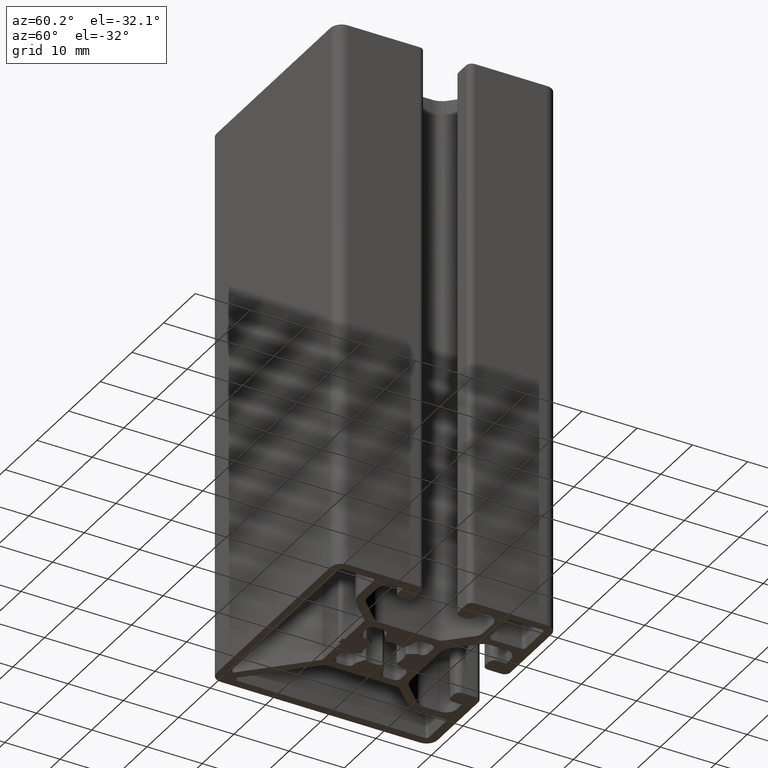
[diagram: clean part render]
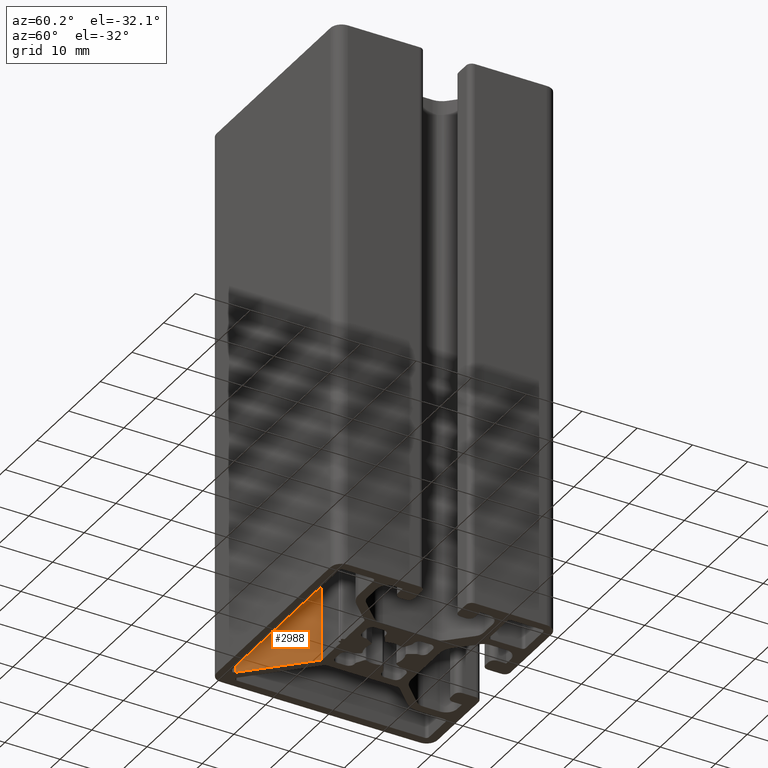
[diagram: same view with one face highlighted and labeled with its STEP entity id]
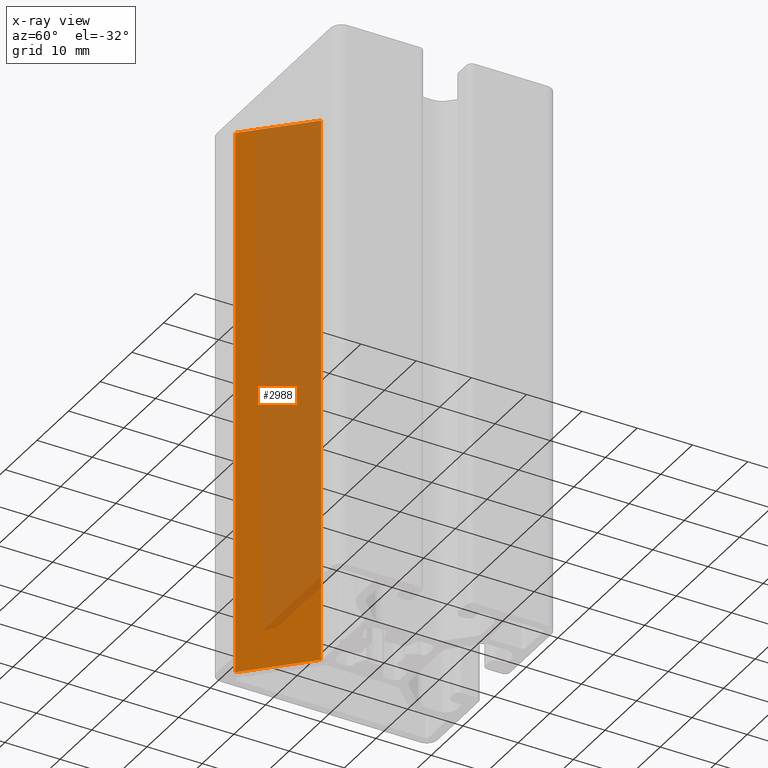
[diagram: x-ray of the same camera — body ghosted, the highlighted face saturated]
A machine part, auxiliary view. The second image highlights one B-rep face of the part: STEP entity #2988.
The next image is the same camera in x-ray: the body ghosted, the highlighted face saturated — about 66% of this face is hidden behind the body in this view.
In plain terms, the highlighted planar face has unit normal (-0.7071, 0.7071, 0).
Its self-contained STEP definition (entity closure, byte-faithful):
#26=PLANE('',#3155);
#109=FACE_OUTER_BOUND('',#266,.T.);
#266=EDGE_LOOP('',(#2001,#2002,#2003,#2004));
#437=LINE('',#4435,#746);
#438=LINE('',#4438,#747);
#439=LINE('',#4440,#748);
#440=LINE('',#4441,#749);
#746=VECTOR('',#3498,100.);
#747=VECTOR('',#3501,14.0007142674936);
#748=VECTOR('',#3502,14.0007142674936);
#749=VECTOR('',#3503,100.);
#1212=VERTEX_POINT('',#4431);
#1213=VERTEX_POINT('',#4433);
#1214=VERTEX_POINT('',#4437);
#1215=VERTEX_POINT('',#4439);
#1529=EDGE_CURVE('',#1213,#1212,#437,.T.);
#1530=EDGE_CURVE('',#1212,#1214,#438,.T.);
#1531=EDGE_CURVE('',#1215,#1213,#439,.T.);
#1532=EDGE_CURVE('',#1215,#1214,#440,.T.);
#2001=ORIENTED_EDGE('',*,*,#1530,.F.);
#2002=ORIENTED_EDGE('',*,*,#1529,.F.);
#2003=ORIENTED_EDGE('',*,*,#1531,.F.);
#2004=ORIENTED_EDGE('',*,*,#1532,.T.);
#2988=ADVANCED_FACE('',(#109),#26,.F.);
#3155=AXIS2_PLACEMENT_3D('',#4436,#3499,#3500);
#3498=DIRECTION('',(0.,0.,1.));
#3499=DIRECTION('center_axis',(-0.707106781186547,0.707106781186548,0.));
#3500=DIRECTION('ref_axis',(-0.707106781186548,-0.707106781186547,0.));
#3501=DIRECTION('',(0.707106781186548,0.707106781186547,0.));
#3502=DIRECTION('',(-0.707106781186548,-0.707106781186547,0.));
#3503=DIRECTION('',(0.,0.,1.));
#4431=CARTESIAN_POINT('',(-16.4150627595083,-17.5464466094067,100.));
#4433=CARTESIAN_POINT('',(-16.4150627595083,-17.5464466094067,0.));
#4435=CARTESIAN_POINT('',(-16.4150627595083,-17.5464466094067,0.));
#4436=CARTESIAN_POINT('Origin',(-6.51506275950825,-7.64644660940674,0.));
#4437=CARTESIAN_POINT('',(-6.51506275950825,-7.64644660940674,100.));
#4438=CARTESIAN_POINT('',(-2.9746854172795,-4.106069267178,100.));
#4439=CARTESIAN_POINT('',(-6.51506275950825,-7.64644660940674,0.));
#4440=CARTESIAN_POINT('',(-2.9746854172795,-4.106069267178,0.));
#4441=CARTESIAN_POINT('',(-6.51506275950825,-7.64644660940674,0.));